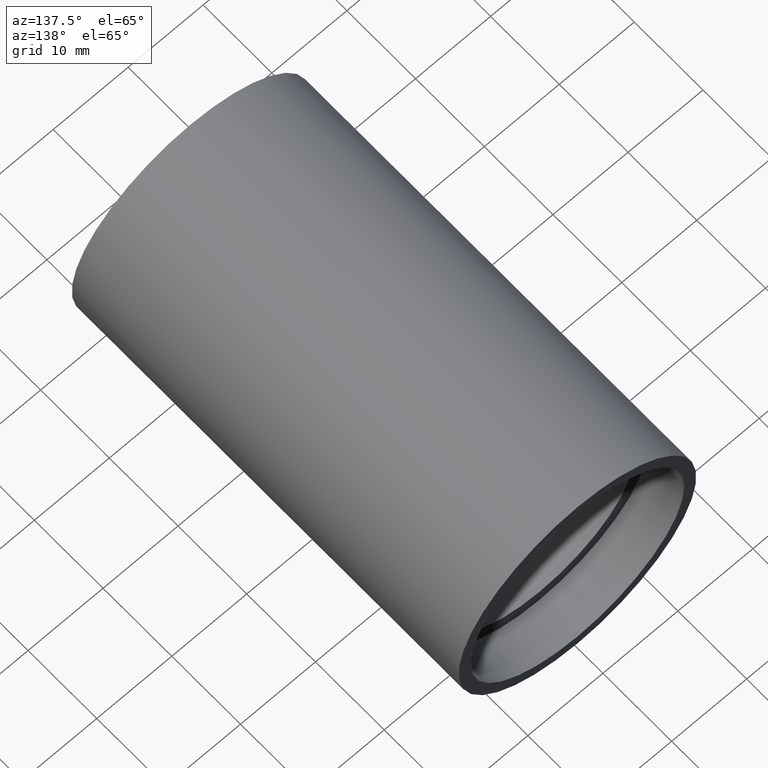
[diagram: clean part render]
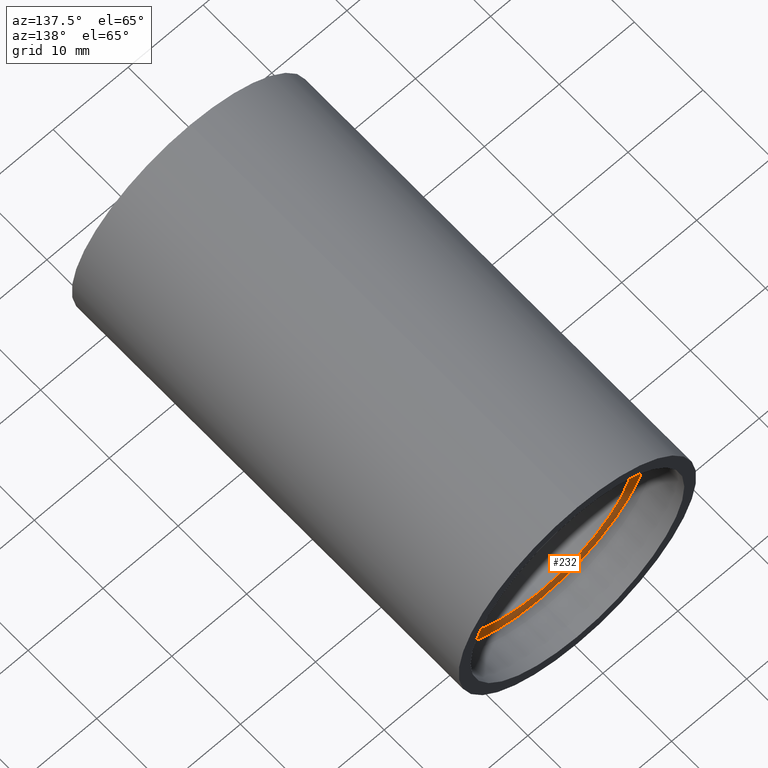
[diagram: same view with one face highlighted and labeled with its STEP entity id]
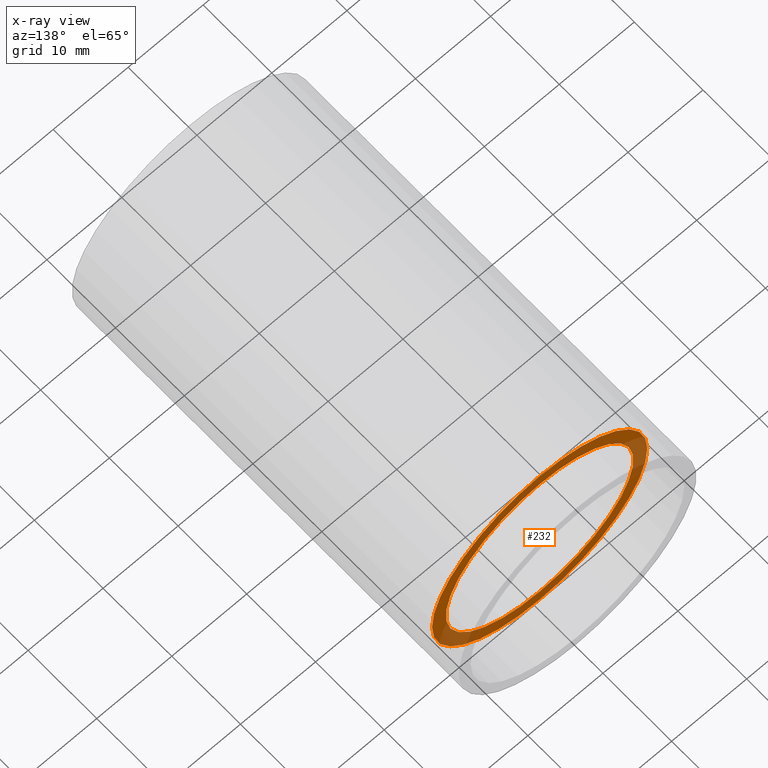
[diagram: x-ray of the same camera — body ghosted, the highlighted face saturated]
A machine part, auxiliary view. The second image highlights one B-rep face of the part: STEP entity #232.
The next image is the same camera in x-ray: the body ghosted, the highlighted face saturated — about 21% of this face is hidden behind the body in this view.
In plain terms, the highlighted planar face has unit normal (0, -1, 0).
Its self-contained STEP definition (entity closure, byte-faithful):
#16 = VERTEX_POINT ( 'NONE', #107 ) ;
#36 = CIRCLE ( 'NONE', #56, 14.35000000000001200 ) ;
#41 = DIRECTION ( 'NONE',  ( -0.0000000000000000000, 1.000000000000000000, -0.0000000000000000000 ) ) ;
#44 = AXIS2_PLACEMENT_3D ( 'NONE', #85, #41, #144 ) ;
#45 = PLANE ( 'NONE',  #398 ) ;
#49 = ORIENTED_EDGE ( 'NONE', *, *, #106, .T. ) ;
#56 = AXIS2_PLACEMENT_3D ( 'NONE', #63, #408, #314 ) ;
#63 = CARTESIAN_POINT ( 'NONE',  ( 0.0000000000000000000, 50.79999999999996900, 0.0000000000000000000 ) ) ;
#85 = CARTESIAN_POINT ( 'NONE',  ( 0.0000000000000000000, 50.79999999999996900, 0.0000000000000000000 ) ) ;
#91 = CARTESIAN_POINT ( 'NONE',  ( 1.530808498934193900E-015, 50.79999999999996900, -12.50000000000002000 ) ) ;
#106 = EDGE_CURVE ( 'NONE', #529, #16, #474, .T. ) ;
#107 = CARTESIAN_POINT ( 'NONE',  ( 1.757368156776453600E-015, 50.79999999999996900, -14.35000000000001200 ) ) ;
#144 = DIRECTION ( 'NONE',  ( 0.0000000000000000000, 0.0000000000000000000, 1.000000000000000000 ) ) ;
#163 = ORIENTED_EDGE ( 'NONE', *, *, #303, .F. ) ;
#172 = ORIENTED_EDGE ( 'NONE', *, *, #222, .F. ) ;
#181 = VERTEX_POINT ( 'NONE', #424 ) ;
#190 = DIRECTION ( 'NONE',  ( 0.0000000000000000000, -1.000000000000000000, 0.0000000000000000000 ) ) ;
#193 = EDGE_LOOP ( 'NONE', ( #172, #163 ) ) ;
#202 = EDGE_LOOP ( 'NONE', ( #49, #549 ) ) ;
#222 = EDGE_CURVE ( 'NONE', #181, #333, #249, .T. ) ;
#232 = ADVANCED_FACE ( 'NONE', ( #352, #502 ), #45, .F. ) ;
#249 = CIRCLE ( 'NONE', #44, 12.50000000000002000 ) ;
#284 = CIRCLE ( 'NONE', #342, 12.50000000000002000 ) ;
#303 = EDGE_CURVE ( 'NONE', #333, #181, #284, .T. ) ;
#307 = CARTESIAN_POINT ( 'NONE',  ( 0.0000000000000000000, 50.79999999999996900, 14.35000000000001200 ) ) ;
#314 = DIRECTION ( 'NONE',  ( 0.0000000000000000000, 0.0000000000000000000, 1.000000000000000000 ) ) ;
#333 = VERTEX_POINT ( 'NONE', #91 ) ;
#342 = AXIS2_PLACEMENT_3D ( 'NONE', #576, #583, #394 ) ;
#352 = FACE_BOUND ( 'NONE', #193, .T. ) ;
#366 = AXIS2_PLACEMENT_3D ( 'NONE', #553, #481, #479 ) ;
#394 = DIRECTION ( 'NONE',  ( 0.0000000000000000000, 0.0000000000000000000, 1.000000000000000000 ) ) ;
#398 = AXIS2_PLACEMENT_3D ( 'NONE', #537, #190, #493 ) ;
#408 = DIRECTION ( 'NONE',  ( -0.0000000000000000000, 1.000000000000000000, -0.0000000000000000000 ) ) ;
#424 = CARTESIAN_POINT ( 'NONE',  ( 0.0000000000000000000, 50.79999999999996900, 12.50000000000002000 ) ) ;
#474 = CIRCLE ( 'NONE', #366, 14.35000000000001200 ) ;
#479 = DIRECTION ( 'NONE',  ( 0.0000000000000000000, 0.0000000000000000000, 1.000000000000000000 ) ) ;
#481 = DIRECTION ( 'NONE',  ( -0.0000000000000000000, 1.000000000000000000, -0.0000000000000000000 ) ) ;
#493 = DIRECTION ( 'NONE',  ( 0.0000000000000000000, -0.0000000000000000000, -1.000000000000000000 ) ) ;
#502 = FACE_OUTER_BOUND ( 'NONE', #202, .T. ) ;
#505 = EDGE_CURVE ( 'NONE', #16, #529, #36, .T. ) ;
#529 = VERTEX_POINT ( 'NONE', #307 ) ;
#537 = CARTESIAN_POINT ( 'NONE',  ( 12.50000000000002000, 50.79999999999996900, 0.0000000000000000000 ) ) ;
#549 = ORIENTED_EDGE ( 'NONE', *, *, #505, .T. ) ;
#553 = CARTESIAN_POINT ( 'NONE',  ( 0.0000000000000000000, 50.79999999999996900, 0.0000000000000000000 ) ) ;
#576 = CARTESIAN_POINT ( 'NONE',  ( 0.0000000000000000000, 50.79999999999996900, 0.0000000000000000000 ) ) ;
#583 = DIRECTION ( 'NONE',  ( -0.0000000000000000000, 1.000000000000000000, -0.0000000000000000000 ) ) ;